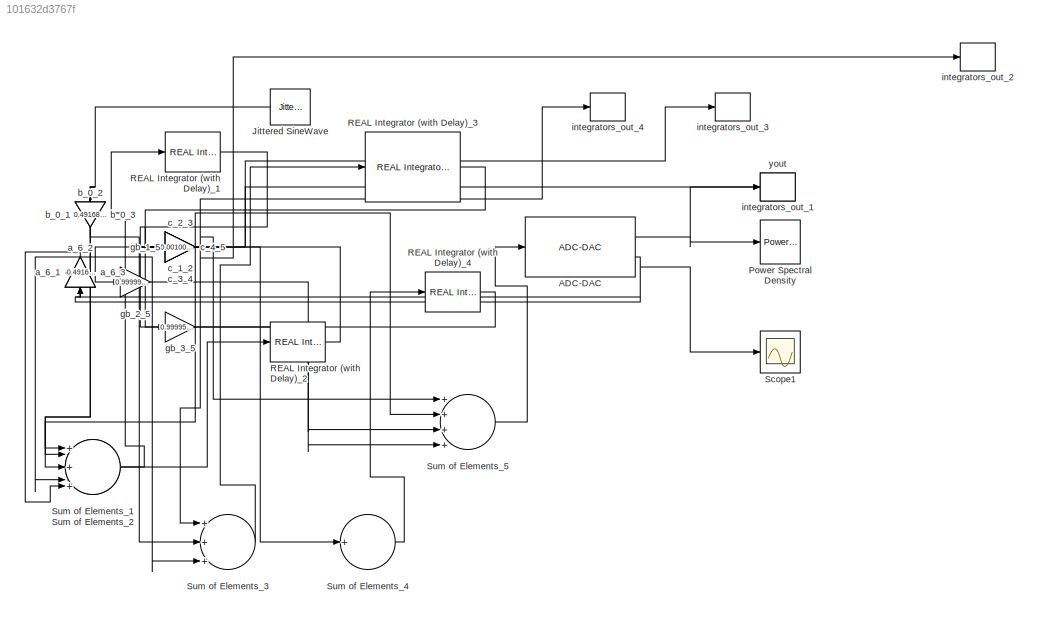
MODEL slx_101632d3767f
KIND model
CONFIG AbsTol = auto
CONFIG EnableMultiTasking = off
CONFIG FixedStep = auto
CONFIG MaxStep = auto
CONFIG MinStep = auto
CONFIG RelTol = 1e-3
CONFIG SampleTimeConstraint = Unconstrained
CONFIG Solver = VariableStepAuto
CONFIG SolverName = VariableStepAuto
CONFIG StartTime = 0.0
CONFIG StopTime = 10.0
BLOCK [Reference] ADC-DAC  REF=SDtoolbox/ADC-DAC
  Ports = [1, 2]
  SourceBlock = SDtoolbox/ADC-DAC
BLOCK [Reference] Jittered SineWave  REF=SDtoolbox/Jittered SineWave
  Ports = [0, 1]
  SourceBlock = SDtoolbox/Jittered SineWave
BLOCK [Reference] Power Spectral Density  REF=SDtoolbox/Power Spectral Density
  Ports = [1]
  SourceBlock = SDtoolbox/Power Spectral Density
BLOCK [Reference] REAL Integrator (with Delay)_1  REF=SDtoolbox/REAL Integrator
(with Delay)
  Ports = [1, 1]
  SourceBlock = SDtoolbox/REAL Integrator\n(with Delay)
BLOCK [Reference] REAL Integrator (with Delay)_2  REF=SDtoolbox/REAL Integrator
(with Delay)
  Ports = [1, 1]
  SourceBlock = SDtoolbox/REAL Integrator\n(with Delay)
BLOCK [Reference] REAL Integrator (with Delay)_3  REF=SDtoolbox/REAL Integrator
(with Delay)
  Ports = [1, 1]
  SourceBlock = SDtoolbox/REAL Integrator\n(with Delay)
BLOCK [Reference] REAL Integrator (with Delay)_4  REF=SDtoolbox/REAL Integrator
(with Delay)
  Ports = [1, 1]
  SourceBlock = SDtoolbox/REAL Integrator\n(with Delay)
BLOCK [Scope] Scope1
  NumInputPorts = 1
  Ports = [1]
  ScopeSpecificationString = C++SS(StrPVP('Location','[-21, 147, 1379, 1110]'),StrPVP('Open','off'),StrPVP('ZoomMode','xonly'),MxPVP('AxesTitles',53,'struct(''axes1'',''%<SignalLabel>'')'),StrPVP('YMin','-1'),StrPVP('YMax','1'),StrPVP('SaveName','ScopeData1'),StrPVP('DataFormat','StructureWithTime'),StrPVP('BlockParamSampleTime','0'),StrPVP('LimitDataPoints','on'),StrPVP('Decimation','1'),StrPVP('BlockParamSampleInput','off')...<+1ch>
BLOCK [Sum] Sum of Elements_1
  InputSameDT = off
  OutDataTypeStr = Inherit: Inherit via internal rule
  Ports = [2, 1]
  SaturateOnIntegerOverflow = off
BLOCK [Sum] Sum of Elements_2
  InputSameDT = off
  Inputs = +++
  OutDataTypeStr = Inherit: Inherit via internal rule
  Ports = [3, 1]
  SaturateOnIntegerOverflow = off
BLOCK [Sum] Sum of Elements_3
  InputSameDT = off
  Inputs = +++
  OutDataTypeStr = Inherit: Inherit via internal rule
  Ports = [3, 1]
  SaturateOnIntegerOverflow = off
BLOCK [Sum] Sum of Elements_4
  InputSameDT = off
  Inputs = +
  OutDataTypeStr = Inherit: Inherit via internal rule
  Ports = [1, 1]
  SaturateOnIntegerOverflow = off
BLOCK [Sum] Sum of Elements_5
  InputSameDT = off
  Inputs = ++++
  OutDataTypeStr = Inherit: Inherit via internal rule
  Ports = [4, 1]
  SaturateOnIntegerOverflow = off
BLOCK [Gain] a_6_1
  Gain = -0.21736103806474788
BLOCK [Gain] a_6_2
  Gain = -0.7138277514147042
BLOCK [Gain] a_6_3
  Gain = -0.4916833294976032
BLOCK [Gain] b_0_1
  Gain = 0.21736103806474788
BLOCK [Gain] b_0_2
  Gain = 0.7138277514147042
BLOCK [Gain] b_0_3
  Gain = 0.4916833294976032
BLOCK [Gain] c_1_2
  Gain = 1.999938696807636
BLOCK [Gain] c_2_3
  Gain = 0.43649602657433184
BLOCK [Gain] c_3_4
  Gain = 0.32102133949135075
BLOCK [Gain] c_4_5
  Gain = 0.8228742981151699
BLOCK [Gain] gb_1_5
  Gain = 0.0010093918146779764
BLOCK [Gain] gb_2_5
  Gain = 0.999996558425759
BLOCK [Gain] gb_3_5
  Gain = 0.9999577675126653
BLOCK [ToWorkspace] integrators_out_1
  MaxDataPoints = inf
  Ports = [1]
  SampleTime = -1
  VariableName = integrators_out_1
BLOCK [ToWorkspace] integrators_out_2
  MaxDataPoints = inf
  Ports = [1]
  SampleTime = -1
  VariableName = integrators_out_2
BLOCK [ToWorkspace] integrators_out_3
  MaxDataPoints = inf
  Ports = [1]
  SampleTime = -1
  VariableName = integrators_out_3
BLOCK [ToWorkspace] integrators_out_4
  MaxDataPoints = inf
  Ports = [1]
  SampleTime = -1
  VariableName = integrators_out_4
BLOCK [ToWorkspace] yout
  MaxDataPoints = inf
  Ports = [1]
  SampleTime = -1
  VariableName = yout
NET ADC-DAC:1 -> Power Spectral Density:1, yout:1
NET ADC-DAC:2 -> Scope1:1, a_6_1:1, a_6_2:1, a_6_3:1
NET Jittered SineWave:1 -> b_0_1:1, b_0_2:1, b_0_3:1
NET REAL Integrator (with Delay)_1:1 -> c_1_2:1, gb_1_5:1
NET REAL Integrator (with Delay)_2:1 -> c_2_3:1, gb_2_5:1
NET REAL Integrator (with Delay)_3:1 -> c_3_4:1, gb_3_5:1
LINE REAL Integrator (with Delay)_4:1 -> c_4_5:1
LINE Sum of Elements_1:1 -> REAL Integrator (with Delay)_1:1
LINE Sum of Elements_2:1 -> REAL Integrator (with Delay)_2:1
LINE Sum of Elements_3:1 -> REAL Integrator (with Delay)_3:1
LINE Sum of Elements_4:1 -> REAL Integrator (with Delay)_4:1
LINE Sum of Elements_5:1 -> ADC-DAC:1
LINE a_6_1:1 -> Sum of Elements_1:2
LINE a_6_2:1 -> Sum of Elements_2:3
LINE a_6_3:1 -> Sum of Elements_3:3
LINE b_0_1:1 -> Sum of Elements_1:1
LINE b_0_2:1 -> Sum of Elements_2:2
LINE b_0_3:1 -> Sum of Elements_3:2
NET c_1_2:1 -> Sum of Elements_2:1, integrators_out_1:1
NET c_2_3:1 -> Sum of Elements_3:1, integrators_out_2:1
NET c_3_4:1 -> Sum of Elements_4:1, integrators_out_3:1
NET c_4_5:1 -> Sum of Elements_5:1, integrators_out_4:1
LINE gb_1_5:1 -> Sum of Elements_5:2
LINE gb_2_5:1 -> Sum of Elements_5:3
LINE gb_3_5:1 -> Sum of Elements_5:4
note: NET lines group one-source signal fan-out (src -> all destinations, sorted); 1:1 wires keep LINE
